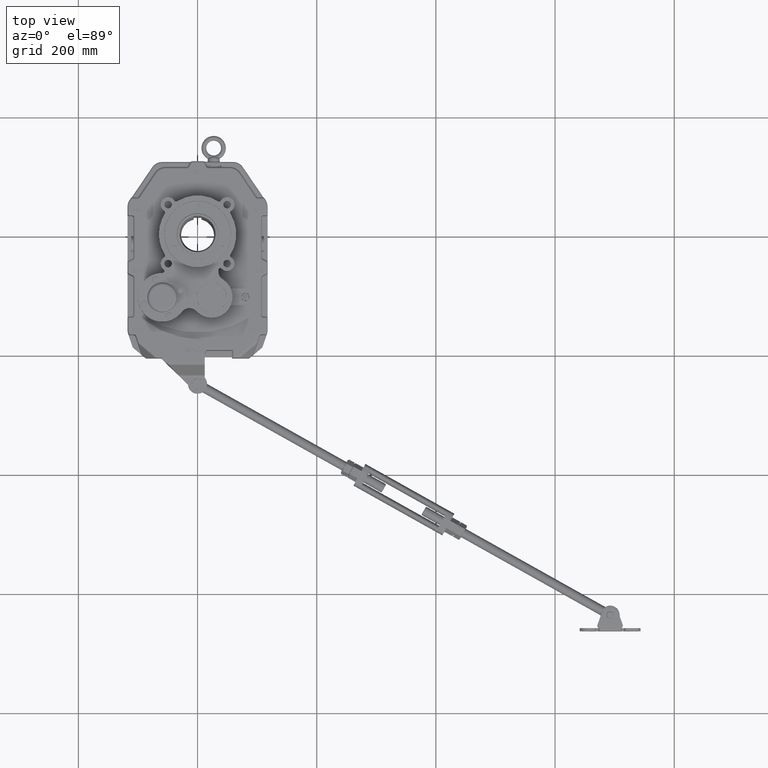
[diagram: clean part render]
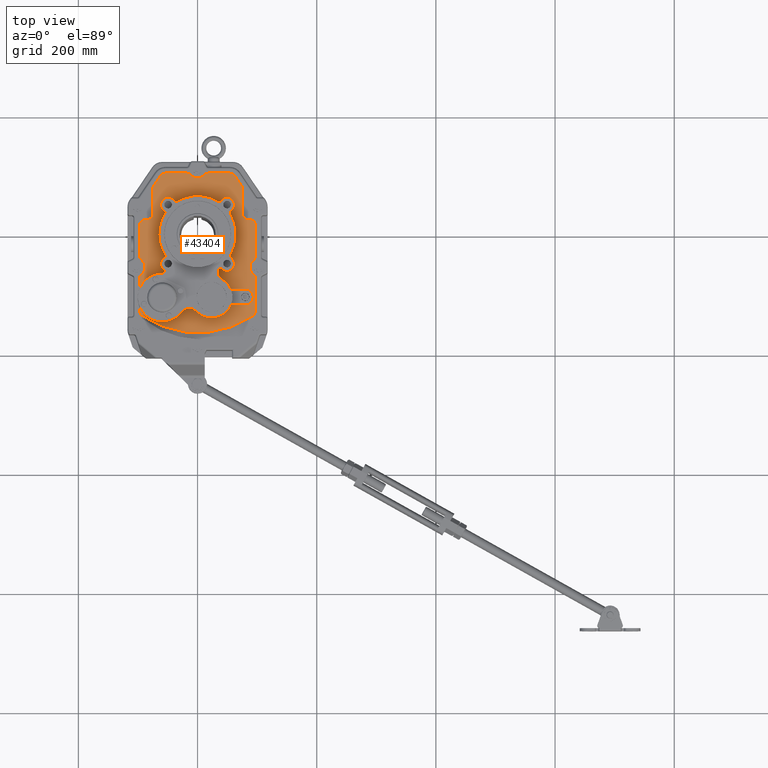
[diagram: same view with one face highlighted and labeled with its STEP entity id]
A machine part, top view. The second image highlights one B-rep face of the part: STEP entity #43404.
In plain terms, the highlighted planar face has unit normal (0, 0, 1).
Its self-contained STEP definition (entity closure, byte-faithful):
#63 = CARTESIAN_POINT ( 'NONE',  ( 2.165242691220416100, -1.363996768926805500, 3.425196850393701400 ) ) ;
#102 = ORIENTED_EDGE ( 'NONE', *, *, #18025, .F. ) ;
#127 = DIRECTION ( 'NONE',  ( -1.000000000000000000, 0.0000000000000000000, 0.0000000000000000000 ) ) ;
#179 = VERTEX_POINT ( 'NONE', #36870 ) ;
#317 = AXIS2_PLACEMENT_3D ( 'NONE', #37552, #11380, #41975 ) ;
#418 = EDGE_CURVE ( 'NONE', #13472, #18534, #47216, .T. ) ;
#689 = CARTESIAN_POINT ( 'NONE',  ( -2.131126906423645100, 3.661417322834645800, 3.425196850393701400 ) ) ;
#842 = CARTESIAN_POINT ( 'NONE',  ( -3.838582677165355100, -4.596103358185295000E-016, 3.425196850393701400 ) ) ;
#966 = CIRCLE ( 'NONE', #29306, 0.3937007874015746000 ) ;
#1049 = CARTESIAN_POINT ( 'NONE',  ( 3.688976377952756900, -1.702006805214179900, 3.425196850393701400 ) ) ;
#1146 = ORIENTED_EDGE ( 'NONE', *, *, #21333, .T. ) ;
#1168 = ORIENTED_EDGE ( 'NONE', *, *, #31981, .F. ) ;
#1314 = CARTESIAN_POINT ( 'NONE',  ( 2.559055118110236600, 3.030408433684737900, 3.425196850393701400 ) ) ;
#1393 = CARTESIAN_POINT ( 'NONE',  ( -2.337795275590550700, -4.173228346456692600, 3.425196850393701400 ) ) ;
#1419 = AXIS2_PLACEMENT_3D ( 'NONE', #47978, #21734, #52424 ) ;
#1520 = ORIENTED_EDGE ( 'NONE', *, *, #41373, .T. ) ;
#1769 = CARTESIAN_POINT ( 'NONE',  ( -2.165242691220417000, 1.363996768926805100, 3.425196850393701400 ) ) ;
#1793 = VERTEX_POINT ( 'NONE', #17258 ) ;
#1806 = DIRECTION ( 'NONE',  ( 1.000000000000000000, 0.0000000000000000000, 0.0000000000000000000 ) ) ;
#1835 = ORIENTED_EDGE ( 'NONE', *, *, #41409, .F. ) ;
#1883 = CARTESIAN_POINT ( 'NONE',  ( -1.948719475710958300, 1.948719475710957400, 3.425196850393701400 ) ) ;
#1987 = CARTESIAN_POINT ( 'NONE',  ( 0.9299212598425203900, -4.149055118110236000, 3.425196850393701400 ) ) ;
#2024 = DIRECTION ( 'NONE',  ( 1.000000000000000000, 0.0000000000000000000, 0.0000000000000000000 ) ) ;
#2143 = CARTESIAN_POINT ( 'NONE',  ( -0.5922498248009313600, -4.639412485231416000, 3.425196850393700500 ) ) ;
#2157 = AXIS2_PLACEMENT_3D ( 'NONE', #54207, #27906, #1806 ) ;
#2278 = ORIENTED_EDGE ( 'NONE', *, *, #28832, .T. ) ;
#2366 = DIRECTION ( 'NONE',  ( 1.000000000000000000, 0.0000000000000000000, 0.0000000000000000000 ) ) ;
#2394 = DIRECTION ( 'NONE',  ( 1.000000000000000000, 0.0000000000000000000, 0.0000000000000000000 ) ) ;
#2546 = ORIENTED_EDGE ( 'NONE', *, *, #32982, .F. ) ;
#2551 = CARTESIAN_POINT ( 'NONE',  ( -3.444881889763780500, 0.5905511811023623800, 3.425196850393701400 ) ) ;
#2585 = CARTESIAN_POINT ( 'NONE',  ( 2.165242691220416100, 1.363996768926805100, 3.425196850393701400 ) ) ;
#2634 = AXIS2_PLACEMENT_3D ( 'NONE', #46844, #20621, #51282 ) ;
#2731 = DIRECTION ( 'NONE',  ( 1.000000000000000000, -1.110223024625156100E-015, 0.0000000000000000000 ) ) ;
#2842 = EDGE_CURVE ( 'NONE', #44930, #46977, #10909, .T. ) ;
#2974 = CARTESIAN_POINT ( 'NONE',  ( -3.838582677165354600, -4.767528259282508800, 3.425196850393701400 ) ) ;
#3171 = ORIENTED_EDGE ( 'NONE', *, *, #47142, .T. ) ;
#3172 = AXIS2_PLACEMENT_3D ( 'NONE', #55112, #28834, #2731 ) ;
#3254 = CARTESIAN_POINT ( 'NONE',  ( 3.838582677165355100, -1.393108454884525600, 3.425196850393701400 ) ) ;
#3273 = CARTESIAN_POINT ( 'NONE',  ( 1.948719475710957800, -1.948719475710958300, 3.425196850393701400 ) ) ;
#3293 = DIRECTION ( 'NONE',  ( -0.7547095802227760100, 0.6560590289905026100, -0.0000000000000000000 ) ) ;
#3295 = EDGE_CURVE ( 'NONE', #15310, #23359, #10145, .T. ) ;
#3450 = VERTEX_POINT ( 'NONE', #34448 ) ;
#3531 = CIRCLE ( 'NONE', #7735, 0.1181102362204725500 ) ;
#3615 = CARTESIAN_POINT ( 'NONE',  ( 2.265176969276743200, -1.426950465954196700, 3.425196850393701400 ) ) ;
#3668 = DIRECTION ( 'NONE',  ( 1.000000000000000000, 0.0000000000000000000, 0.0000000000000000000 ) ) ;
#3940 = AXIS2_PLACEMENT_3D ( 'NONE', #49687, #23390, #54111 ) ;
#5075 = CARTESIAN_POINT ( 'NONE',  ( -2.203927131812397600, -1.527938016229698700, 3.425196850393701400 ) ) ;
#5095 = DIRECTION ( 'NONE',  ( 1.000000000000000000, 0.0000000000000000000, 0.0000000000000000000 ) ) ;
#5137 = EDGE_CURVE ( 'NONE', #8552, #11433, #42046, .T. ) ;
#5192 = ORIENTED_EDGE ( 'NONE', *, *, #56242, .T. ) ;
#5245 = DIRECTION ( 'NONE',  ( 1.197343849209297100E-016, -1.000000000000000000, 0.0000000000000000000 ) ) ;
#5274 = CARTESIAN_POINT ( 'NONE',  ( 2.952755905511811100, 3.030408433684737900, 3.425196850393701400 ) ) ;
#5400 = CARTESIAN_POINT ( 'NONE',  ( 2.884894484019640000, 3.251381322574705000, 3.425196850393701400 ) ) ;
#5496 = CARTESIAN_POINT ( 'NONE',  ( 2.265176969276743600, 1.426950465954196300, 3.425196850393701400 ) ) ;
#5509 = CIRCLE ( 'NONE', #317, 0.5905511811023621500 ) ;
#5728 = DIRECTION ( 'NONE',  ( 1.000000000000000000, 0.0000000000000000000, 0.0000000000000000000 ) ) ;
#5792 = ORIENTED_EDGE ( 'NONE', *, *, #16773, .T. ) ;
#5808 = DIRECTION ( 'NONE',  ( 1.000000000000000000, 0.0000000000000000000, 0.0000000000000000000 ) ) ;
#5841 = VECTOR ( 'NONE', #12020, 39.37007874015748100 ) ;
#5949 = CIRCLE ( 'NONE', #19920, 2.559055118110236600 ) ;
#6019 = VERTEX_POINT ( 'NONE', #39363 ) ;
#6034 = ORIENTED_EDGE ( 'NONE', *, *, #418, .T. ) ;
#6083 = VERTEX_POINT ( 'NONE', #39943 ) ;
#6140 = DIRECTION ( 'NONE',  ( -0.0000000000000000000, 0.0000000000000000000, 1.000000000000000000 ) ) ;
#6158 = CARTESIAN_POINT ( 'NONE',  ( -3.838582677165354600, -5.037024244851963300, 3.425196850393701400 ) ) ;
#6308 = DIRECTION ( 'NONE',  ( -0.0000000000000000000, 0.0000000000000000000, 1.000000000000000000 ) ) ;
#6324 = DIRECTION ( 'NONE',  ( 1.000000000000000000, 0.0000000000000000000, 0.0000000000000000000 ) ) ;
#6330 = CARTESIAN_POINT ( 'NONE',  ( 0.9299212598425203900, -4.149055118110236000, 3.425196850393701400 ) ) ;
#6367 = CARTESIAN_POINT ( 'NONE',  ( -3.486430754615614800, 2.364375690494199000, 3.425196850393701400 ) ) ;
#6434 = DIRECTION ( 'NONE',  ( 1.000000000000000000, 0.0000000000000000000, 0.0000000000000000000 ) ) ;
#6532 = EDGE_CURVE ( 'NONE', #50035, #33861, #45415, .T. ) ;
#6540 = CIRCLE ( 'NONE', #43175, 0.3937007874015748300 ) ;
#6784 = EDGE_CURVE ( 'NONE', #33122, #20916, #55015, .T. ) ;
#6790 = VERTEX_POINT ( 'NONE', #31355 ) ;
#6841 = CIRCLE ( 'NONE', #42261, 0.5905511811023621500 ) ;
#6859 = AXIS2_PLACEMENT_3D ( 'NONE', #32203, #6140, #36678 ) ;
#6886 = EDGE_CURVE ( 'NONE', #55113, #23441, #45365, .T. ) ;
#6945 = AXIS2_PLACEMENT_3D ( 'NONE', #50287, #24016, #54729 ) ;
#6962 = DIRECTION ( 'NONE',  ( 1.000000000000000000, 0.0000000000000000000, 0.0000000000000000000 ) ) ;
#6964 = CARTESIAN_POINT ( 'NONE',  ( -0.9846883557387301500, -5.080709094029603400, 3.425196850393700500 ) ) ;
#7205 = DIRECTION ( 'NONE',  ( 0.0000000000000000000, -0.0000000000000000000, -1.000000000000000000 ) ) ;
#7220 = CARTESIAN_POINT ( 'NONE',  ( -2.337795275590550700, -4.173228346456692600, 3.425196850393701400 ) ) ;
#7245 = EDGE_CURVE ( 'NONE', #55652, #11433, #966, .T. ) ;
#7282 = VERTEX_POINT ( 'NONE', #52254 ) ;
#7318 = CARTESIAN_POINT ( 'NONE',  ( 0.0000000000000000000, 0.0000000000000000000, 3.425196850393701400 ) ) ;
#7436 = EDGE_CURVE ( 'NONE', #28521, #8120, #11902, .T. ) ;
#7443 = CARTESIAN_POINT ( 'NONE',  ( 2.203927131812397600, 1.527938016229698300, 3.425196850393701400 ) ) ;
#7524 = CARTESIAN_POINT ( 'NONE',  ( -2.952755905511812400, 3.030408433684734800, 3.425196850393701400 ) ) ;
#7566 = CARTESIAN_POINT ( 'NONE',  ( 3.838582677165355100, -3.369200623907272300E-016, 3.425196850393701400 ) ) ;
#7639 = CARTESIAN_POINT ( 'NONE',  ( 3.838582677165355100, -3.369200623907272300E-016, 3.425196850393701400 ) ) ;
#7671 = LINE ( 'NONE', #27619, #19195 ) ;
#7679 = DIRECTION ( 'NONE',  ( 1.000000000000000000, 0.0000000000000000000, 0.0000000000000000000 ) ) ;
#7689 = AXIS2_PLACEMENT_3D ( 'NONE', #52528, #26214, #127 ) ;
#7697 = AXIS2_PLACEMENT_3D ( 'NONE', #48117, #21856, #52559 ) ;
#7735 = AXIS2_PLACEMENT_3D ( 'NONE', #5496, #36039, #9884 ) ;
#7738 = VERTEX_POINT ( 'NONE', #34385 ) ;
#7797 = AXIS2_PLACEMENT_3D ( 'NONE', #44545, #18297, #48926 ) ;
#7816 = ORIENTED_EDGE ( 'NONE', *, *, #6532, .F. ) ;
#8002 = DIRECTION ( 'NONE',  ( 1.000000000000000000, 0.0000000000000000000, 0.0000000000000000000 ) ) ;
#8061 = CARTESIAN_POINT ( 'NONE',  ( 2.952755905511811600, 7.444619571526831900E-016, 3.425196850393701400 ) ) ;
#8120 = VERTEX_POINT ( 'NONE', #33529 ) ;
#8313 = CARTESIAN_POINT ( 'NONE',  ( 0.0000000000000000000, 0.0000000000000000000, 3.425196850393701400 ) ) ;
#8323 = EDGE_CURVE ( 'NONE', #44316, #15310, #19226, .T. ) ;
#8357 = CARTESIAN_POINT ( 'NONE',  ( 2.194785148156718400, -3.602362204724408800, 3.425196850393701400 ) ) ;
#8412 = ORIENTED_EDGE ( 'NONE', *, *, #13417, .F. ) ;
#8508 = VECTOR ( 'NONE', #5245, 39.37007874015748100 ) ;
#8552 = VERTEX_POINT ( 'NONE', #27525 ) ;
#8565 = DIRECTION ( 'NONE',  ( 0.0000000000000000000, -0.0000000000000000000, -1.000000000000000000 ) ) ;
#8654 = CARTESIAN_POINT ( 'NONE',  ( -3.444881889763780100, -5.037024244851963300, 3.425196850393701400 ) ) ;
#8799 = VECTOR ( 'NONE', #28490, 39.37007874015748100 ) ;
#9424 = VECTOR ( 'NONE', #16200, 39.37007874015748100 ) ;
#9557 = EDGE_CURVE ( 'NONE', #50578, #32836, #44320, .T. ) ;
#9775 = VERTEX_POINT ( 'NONE', #33400 ) ;
#9786 = CARTESIAN_POINT ( 'NONE',  ( -1.131584544875512000, -5.245893664353340000, 3.425196850393700500 ) ) ;
#9798 = CARTESIAN_POINT ( 'NONE',  ( 2.952755905511811100, 1.377952755905512200, 3.425196850393701400 ) ) ;
#9884 = DIRECTION ( 'NONE',  ( 1.000000000000000000, -2.312964634635740700E-015, 0.0000000000000000000 ) ) ;
#10030 = EDGE_CURVE ( 'NONE', #3450, #54992, #5949, .T. ) ;
#10145 = LINE ( 'NONE', #19712, #8799 ) ;
#10192 = DIRECTION ( 'NONE',  ( 0.0000000000000000000, -0.0000000000000000000, -1.000000000000000000 ) ) ;
#10308 = EDGE_CURVE ( 'NONE', #44930, #7738, #39397, .T. ) ;
#10391 = CARTESIAN_POINT ( 'NONE',  ( -1.948719475710957800, -1.948719475710958300, 3.425196850393701400 ) ) ;
#10689 = DIRECTION ( 'NONE',  ( 1.000000000000000000, 0.0000000000000000000, 0.0000000000000000000 ) ) ;
#10747 = VERTEX_POINT ( 'NONE', #40714 ) ;
#10788 = EDGE_CURVE ( 'NONE', #46977, #50544, #31058, .T. ) ;
#10790 = EDGE_CURVE ( 'NONE', #10747, #6790, #19413, .T. ) ;
#10909 = CIRCLE ( 'NONE', #41940, 0.1181102362204725500 ) ;
#10977 = ORIENTED_EDGE ( 'NONE', *, *, #12970, .T. ) ;
#11006 = ORIENTED_EDGE ( 'NONE', *, *, #45570, .T. ) ;
#11132 = CIRCLE ( 'NONE', #45392, 0.4921259842519684100 ) ;
#11178 = CIRCLE ( 'NONE', #55027, 0.3937007874015746000 ) ;
#11261 = LINE ( 'NONE', #44040, #12648 ) ;
#11360 = CARTESIAN_POINT ( 'NONE',  ( -2.884894484019641300, 3.251381322574701500, 3.425196850393701400 ) ) ;
#11380 = DIRECTION ( 'NONE',  ( 0.0000000000000000000, 0.0000000000000000000, 1.000000000000000000 ) ) ;
#11433 = VERTEX_POINT ( 'NONE', #24484 ) ;
#11481 = AXIS2_PLACEMENT_3D ( 'NONE', #1987, #32497, #6434 ) ;
#11614 = DIRECTION ( 'NONE',  ( 1.000000000000000000, 0.0000000000000000000, 0.0000000000000000000 ) ) ;
#11641 = CIRCLE ( 'NONE', #2634, 0.3937007874015746000 ) ;
#11703 = DIRECTION ( 'NONE',  ( 1.000000000000000000, 0.0000000000000000000, 0.0000000000000000000 ) ) ;
#11752 = EDGE_CURVE ( 'NONE', #50419, #30520, #41879, .T. ) ;
#11856 = VERTEX_POINT ( 'NONE', #53968 ) ;
#11902 = CIRCLE ( 'NONE', #7797, 0.1181102362204725500 ) ;
#12002 = CARTESIAN_POINT ( 'NONE',  ( -2.265176969276743600, 1.426950465954196100, 3.425196850393701400 ) ) ;
#12020 = DIRECTION ( 'NONE',  ( -8.777199574076379000E-017, -1.000000000000000000, 0.0000000000000000000 ) ) ;
#12364 = DIRECTION ( 'NONE',  ( -0.0000000000000000000, 0.0000000000000000000, 1.000000000000000000 ) ) ;
#12381 = VERTEX_POINT ( 'NONE', #50037 ) ;
#12539 = CIRCLE ( 'NONE', #48895, 0.4921259842519692400 ) ;
#12612 = CARTESIAN_POINT ( 'NONE',  ( -3.464566929133857000, -2.165354330708661600, 3.425196850393701400 ) ) ;
#12648 = VECTOR ( 'NONE', #17795, 39.37007874015748100 ) ;
#12670 = ORIENTED_EDGE ( 'NONE', *, *, #49872, .F. ) ;
#12716 = DIRECTION ( 'NONE',  ( 1.000000000000000000, 0.0000000000000000000, 0.0000000000000000000 ) ) ;
#12752 = LINE ( 'NONE', #8061, #14068 ) ;
#12951 = ORIENTED_EDGE ( 'NONE', *, *, #17576, .F. ) ;
#12970 = EDGE_CURVE ( 'NONE', #13950, #6019, #25226, .T. ) ;
#13042 = DIRECTION ( 'NONE',  ( 1.000000000000000000, 0.0000000000000000000, 0.0000000000000000000 ) ) ;
#13100 = VERTEX_POINT ( 'NONE', #42780 ) ;
#13165 = ORIENTED_EDGE ( 'NONE', *, *, #10030, .F. ) ;
#13226 = ORIENTED_EDGE ( 'NONE', *, *, #7245, .T. ) ;
#13333 = EDGE_CURVE ( 'NONE', #49836, #44316, #54689, .T. ) ;
#13417 = EDGE_CURVE ( 'NONE', #13950, #25921, #37536, .T. ) ;
#13472 = VERTEX_POINT ( 'NONE', #41149 ) ;
#13950 = VERTEX_POINT ( 'NONE', #31638 ) ;
#14068 = VECTOR ( 'NONE', #43054, 39.37007874015748100 ) ;
#14086 = ORIENTED_EDGE ( 'NONE', *, *, #35494, .T. ) ;
#14103 = DIRECTION ( 'NONE',  ( -0.0000000000000000000, 0.0000000000000000000, 1.000000000000000000 ) ) ;
#14161 = ORIENTED_EDGE ( 'NONE', *, *, #7436, .F. ) ;
#14435 = LINE ( 'NONE', #6367, #47970 ) ;
#14620 = CARTESIAN_POINT ( 'NONE',  ( 0.0000000000000000000, 4.055118110236220400, 3.425196850393701400 ) ) ;
#14633 = EDGE_CURVE ( 'NONE', #16931, #23987, #35935, .T. ) ;
#14694 = ORIENTED_EDGE ( 'NONE', *, *, #10790, .F. ) ;
#14753 = DIRECTION ( 'NONE',  ( 1.000000000000000000, 1.110223024625156700E-015, 0.0000000000000000000 ) ) ;
#15159 = VERTEX_POINT ( 'NONE', #5274 ) ;
#15233 = EDGE_CURVE ( 'NONE', #21774, #26097, #21210, .T. ) ;
#15295 = DIRECTION ( 'NONE',  ( -0.7472622575649244800, 0.6645292457213394200, -0.0000000000000000000 ) ) ;
#15310 = VERTEX_POINT ( 'NONE', #15334 ) ;
#15319 = AXIS2_PLACEMENT_3D ( 'NONE', #36353, #10192, #40762 ) ;
#15334 = CARTESIAN_POINT ( 'NONE',  ( -3.346456692913386100, 0.9842519685039372600, 3.425196850393701400 ) ) ;
#15336 = ORIENTED_EDGE ( 'NONE', *, *, #42262, .T. ) ;
#15341 = VERTEX_POINT ( 'NONE', #11360 ) ;
#15343 = AXIS2_PLACEMENT_3D ( 'NONE', #49587, #23284, #54008 ) ;
#15665 = AXIS2_PLACEMENT_3D ( 'NONE', #32364, #6308, #36837 ) ;
#15686 = VERTEX_POINT ( 'NONE', #53024 ) ;
#15770 = ORIENTED_EDGE ( 'NONE', *, *, #5137, .F. ) ;
#16064 = CARTESIAN_POINT ( 'NONE',  ( -2.271583171080300300, -2.320131670702482400, 3.425196850393700500 ) ) ;
#16161 = CARTESIAN_POINT ( 'NONE',  ( 3.444881889763780500, 0.5905511811023624900, 3.425196850393701400 ) ) ;
#16191 = CARTESIAN_POINT ( 'NONE',  ( 2.207492753175805500, -4.665354330708662000, 3.425196850393701400 ) ) ;
#16200 = DIRECTION ( 'NONE',  ( 1.197343849209297100E-016, -1.000000000000000000, 0.0000000000000000000 ) ) ;
#16202 = EDGE_LOOP ( 'NONE', ( #29538, #6034, #19598, #2278, #39658, #5792, #2546, #37357, #23108, #35687, #55796, #30927, #49251, #1520, #34667, #1835, #15336, #36170, #24112, #46963, #44179, #53313, #51154, #52358, #13165, #21143, #41840, #19549, #43538, #37920, #14694, #41261, #28426, #18761, #23718, #55377, #27822, #44001, #40995, #11006, #14161, #5192, #47375, #12670, #23317, #7816, #1168, #51689, #34856, #14086, #49890, #29153, #13226, #15770, #29474, #102, #44928, #32303, #3171, #35167, #36568, #18366, #35261, #12951, #1146, #8412, #10977 ) ) ;
#16361 = DIRECTION ( 'NONE',  ( 1.000000000000000000, -4.625929269271481400E-015, 0.0000000000000000000 ) ) ;
#16748 = VERTEX_POINT ( 'NONE', #26599 ) ;
#16773 = EDGE_CURVE ( 'NONE', #50419, #49879, #44319, .T. ) ;
#16931 = VERTEX_POINT ( 'NONE', #27535 ) ;
#17258 = CARTESIAN_POINT ( 'NONE',  ( 2.440845459962926800, 1.948719475710957800, 3.425196850393701400 ) ) ;
#17523 = AXIS2_PLACEMENT_3D ( 'NONE', #38536, #12364, #42990 ) ;
#17576 = EDGE_CURVE ( 'NONE', #15159, #23987, #12752, .T. ) ;
#17660 = DIRECTION ( 'NONE',  ( 0.0000000000000000000, -0.0000000000000000000, -1.000000000000000000 ) ) ;
#17795 = DIRECTION ( 'NONE',  ( 1.000000000000000000, 0.0000000000000000000, 0.0000000000000000000 ) ) ;
#18025 = EDGE_CURVE ( 'NONE', #12381, #6083, #40694, .T. ) ;
#18297 = DIRECTION ( 'NONE',  ( 0.0000000000000000000, -0.0000000000000000000, -1.000000000000000000 ) ) ;
#18321 = CIRCLE ( 'NONE', #15343, 0.1181102362204725500 ) ;
#18366 = ORIENTED_EDGE ( 'NONE', *, *, #18835, .F. ) ;
#18448 = VERTEX_POINT ( 'NONE', #41589 ) ;
#18458 = DIRECTION ( 'NONE',  ( 0.0000000000000000000, -0.0000000000000000000, -1.000000000000000000 ) ) ;
#18534 = VERTEX_POINT ( 'NONE', #24670 ) ;
#18685 = CARTESIAN_POINT ( 'NONE',  ( 3.444881889763780500, -1.393108454884525600, 3.425196850393701400 ) ) ;
#18689 = AXIS2_PLACEMENT_3D ( 'NONE', #6330, #36855, #10689 ) ;
#18721 = CARTESIAN_POINT ( 'NONE',  ( 3.486430754615615200, 2.364375690494199000, 3.425196850393701400 ) ) ;
#18761 = ORIENTED_EDGE ( 'NONE', *, *, #27364, .T. ) ;
#18835 = EDGE_CURVE ( 'NONE', #16931, #51347, #11261, .T. ) ;
#19077 = AXIS2_PLACEMENT_3D ( 'NONE', #34693, #8565, #39121 ) ;
#19126 = EDGE_CURVE ( 'NONE', #16748, #55113, #46419, .T. ) ;
#19195 = VECTOR ( 'NONE', #53920, 39.37007874015748100 ) ;
#19211 = EDGE_CURVE ( 'NONE', #29565, #18534, #38206, .T. ) ;
#19226 = CIRCLE ( 'NONE', #19077, 0.3937007874015746000 ) ;
#19327 = VERTEX_POINT ( 'NONE', #35529 ) ;
#19341 = CARTESIAN_POINT ( 'NONE',  ( -1.131584544875511100, -5.245893664353339100, 3.425196850393700500 ) ) ;
#19365 = EDGE_CURVE ( 'NONE', #54992, #23441, #19665, .T. ) ;
#19413 = CIRCLE ( 'NONE', #6859, 2.559055118110236600 ) ;
#19500 = CARTESIAN_POINT ( 'NONE',  ( 2.203927131812397200, -1.527938016229699600, 3.425196850393701400 ) ) ;
#19530 = DIRECTION ( 'NONE',  ( 0.0000000000000000000, -0.0000000000000000000, -1.000000000000000000 ) ) ;
#19549 = ORIENTED_EDGE ( 'NONE', *, *, #25046, .F. ) ;
#19598 = ORIENTED_EDGE ( 'NONE', *, *, #19211, .F. ) ;
#19665 = CIRCLE ( 'NONE', #48299, 0.1181102362204725500 ) ;
#19676 = VERTEX_POINT ( 'NONE', #7443 ) ;
#19712 = CARTESIAN_POINT ( 'NONE',  ( -1.517693329813480600E-016, 0.9842519685039378100, 3.425196850393701400 ) ) ;
#19797 = DIRECTION ( 'NONE',  ( -0.0000000000000000000, 0.0000000000000000000, 1.000000000000000000 ) ) ;
#19842 = AXIS2_PLACEMENT_3D ( 'NONE', #7318, #37877, #11703 ) ;
#19920 = AXIS2_PLACEMENT_3D ( 'NONE', #8313, #38875, #12716 ) ;
#20513 = DIRECTION ( 'NONE',  ( 1.000000000000000000, 0.0000000000000000000, 0.0000000000000000000 ) ) ;
#20555 = CARTESIAN_POINT ( 'NONE',  ( -3.838582677165355100, -4.596103358185295000E-016, 3.425196850393701400 ) ) ;
#20621 = DIRECTION ( 'NONE',  ( -0.0000000000000000000, 0.0000000000000000000, 1.000000000000000000 ) ) ;
#20916 = VERTEX_POINT ( 'NONE', #23404 ) ;
#20935 = AXIS2_PLACEMENT_3D ( 'NONE', #54766, #28460, #2366 ) ;
#20982 = PLANE ( 'NONE',  #56105 ) ;
#21056 = CARTESIAN_POINT ( 'NONE',  ( 3.149606299212599000, -3.602362204724409300, 3.425196850393701400 ) ) ;
#21093 = VERTEX_POINT ( 'NONE', #3254 ) ;
#21143 = ORIENTED_EDGE ( 'NONE', *, *, #38284, .F. ) ;
#21210 = CIRCLE ( 'NONE', #11481, 1.377952755905512000 ) ;
#21253 = DIRECTION ( 'NONE',  ( 0.0000000000000000000, 0.0000000000000000000, 1.000000000000000000 ) ) ;
#21330 = VERTEX_POINT ( 'NONE', #40484 ) ;
#21333 = EDGE_CURVE ( 'NONE', #15159, #25921, #11178, .T. ) ;
#21349 = DIRECTION ( 'NONE',  ( 0.0000000000000000000, -0.0000000000000000000, -1.000000000000000000 ) ) ;
#21734 = DIRECTION ( 'NONE',  ( 0.0000000000000000000, 0.0000000000000000000, 1.000000000000000000 ) ) ;
#21752 = VECTOR ( 'NONE', #29452, 39.37007874015748100 ) ;
#21774 = VERTEX_POINT ( 'NONE', #8357 ) ;
#21856 = DIRECTION ( 'NONE',  ( -0.0000000000000000000, 0.0000000000000000000, 1.000000000000000000 ) ) ;
#22066 = AXIS2_PLACEMENT_3D ( 'NONE', #46024, #19797, #50434 ) ;
#22372 = CARTESIAN_POINT ( 'NONE',  ( -2.203927131812397600, 1.527938016229698900, 3.425196850393701400 ) ) ;
#22629 = DIRECTION ( 'NONE',  ( -0.0000000000000000000, 0.0000000000000000000, 1.000000000000000000 ) ) ;
#22820 = VECTOR ( 'NONE', #15295, 39.37007874015748900 ) ;
#22867 = EDGE_CURVE ( 'NONE', #23729, #11856, #38994, .T. ) ;
#22921 = VECTOR ( 'NONE', #27747, 39.37007874015748100 ) ;
#23050 = DIRECTION ( 'NONE',  ( 1.000000000000000000, 0.0000000000000000000, 0.0000000000000000000 ) ) ;
#23076 = VECTOR ( 'NONE', #3293, 39.37007874015748900 ) ;
#23082 = LINE ( 'NONE', #7566, #21752 ) ;
#23108 = ORIENTED_EDGE ( 'NONE', *, *, #13333, .T. ) ;
#23117 = CARTESIAN_POINT ( 'NONE',  ( -2.952755905511811600, 1.377952755905512200, 3.425196850393701400 ) ) ;
#23284 = DIRECTION ( 'NONE',  ( 0.0000000000000000000, -0.0000000000000000000, -1.000000000000000000 ) ) ;
#23317 = ORIENTED_EDGE ( 'NONE', *, *, #56592, .F. ) ;
#23359 = VERTEX_POINT ( 'NONE', #35055 ) ;
#23390 = DIRECTION ( 'NONE',  ( -0.0000000000000000000, 0.0000000000000000000, 1.000000000000000000 ) ) ;
#23404 = CARTESIAN_POINT ( 'NONE',  ( -3.838582677165355100, -1.393108454884524900, 3.425196850393701400 ) ) ;
#23441 = VERTEX_POINT ( 'NONE', #5075 ) ;
#23718 = ORIENTED_EDGE ( 'NONE', *, *, #48174, .F. ) ;
#23729 = VERTEX_POINT ( 'NONE', #6964 ) ;
#23987 = VERTEX_POINT ( 'NONE', #9798 ) ;
#24016 = DIRECTION ( 'NONE',  ( 0.0000000000000000000, -0.0000000000000000000, -1.000000000000000000 ) ) ;
#24093 = CARTESIAN_POINT ( 'NONE',  ( -4.055118110236219500, -2.165354330708661600, 3.425196850393701400 ) ) ;
#24112 = ORIENTED_EDGE ( 'NONE', *, *, #33747, .F. ) ;
#24484 = CARTESIAN_POINT ( 'NONE',  ( -3.667132334264668900, -5.361993550971445400, 3.425196850393701400 ) ) ;
#24512 = CARTESIAN_POINT ( 'NONE',  ( -3.688976377952756000, -1.702006805214179500, 3.425196850393701400 ) ) ;
#24562 = CARTESIAN_POINT ( 'NONE',  ( 0.01423135432098975500, -5.178747205305998400, 3.425196850393700500 ) ) ;
#24670 = CARTESIAN_POINT ( 'NONE',  ( 0.4329992782635440100, 3.929133858267716700, 3.425196850393701400 ) ) ;
#25046 = EDGE_CURVE ( 'NONE', #54871, #15686, #29834, .T. ) ;
#25156 = CARTESIAN_POINT ( 'NONE',  ( -0.7216654637725732300, 4.055118110236220400, 3.425196850393701400 ) ) ;
#25226 = CIRCLE ( 'NONE', #39610, 0.3937007874015746000 ) ;
#25452 = CIRCLE ( 'NONE', #41111, 0.1181102362204725500 ) ;
#25552 = AXIS2_PLACEMENT_3D ( 'NONE', #40316, #14103, #44708 ) ;
#25921 = VERTEX_POINT ( 'NONE', #5400 ) ;
#25967 = CARTESIAN_POINT ( 'NONE',  ( 1.948719475710957800, 1.948719475710957800, 3.425196850393701400 ) ) ;
#26097 = VERTEX_POINT ( 'NONE', #28792 ) ;
#26214 = DIRECTION ( 'NONE',  ( 0.0000000000000000000, 0.0000000000000000000, 1.000000000000000000 ) ) ;
#26470 = CIRCLE ( 'NONE', #17523, 0.3937007874015746000 ) ;
#26599 = CARTESIAN_POINT ( 'NONE',  ( -2.235146074997497400, -2.351805955091798200, 3.425196850393700500 ) ) ;
#26769 = EDGE_CURVE ( 'NONE', #34035, #51347, #50908, .T. ) ;
#26774 = AXIS2_PLACEMENT_3D ( 'NONE', #33294, #7205, #37759 ) ;
#27059 = CIRCLE ( 'NONE', #22066, 0.3937007874015748800 ) ;
#27278 = VERTEX_POINT ( 'NONE', #21056 ) ;
#27364 = EDGE_CURVE ( 'NONE', #1793, #19676, #12539, .T. ) ;
#27525 = CARTESIAN_POINT ( 'NONE',  ( 3.667132334264669300, -5.361993550971445400, 3.425196850393701400 ) ) ;
#27535 = CARTESIAN_POINT ( 'NONE',  ( 3.346456692913385700, 0.9842519685039373700, 3.425196850393701400 ) ) ;
#27619 = CARTESIAN_POINT ( 'NONE',  ( 2.194785148156718400, -3.602362204724408800, 3.425196850393701400 ) ) ;
#27659 = AXIS2_PLACEMENT_3D ( 'NONE', #18685, #49315, #23050 ) ;
#27747 = DIRECTION ( 'NONE',  ( 1.000000000000000000, 1.601965197857698900E-015, 0.0000000000000000000 ) ) ;
#27822 = ORIENTED_EDGE ( 'NONE', *, *, #10788, .F. ) ;
#27894 = CIRCLE ( 'NONE', #6945, 0.4921259842519692400 ) ;
#27906 = DIRECTION ( 'NONE',  ( 0.0000000000000000000, -0.0000000000000000000, -1.000000000000000000 ) ) ;
#27922 = CIRCLE ( 'NONE', #37192, 1.614173228346456700 ) ;
#27929 = CARTESIAN_POINT ( 'NONE',  ( -2.131126906423645100, 4.055118110236220400, 3.425196850393701400 ) ) ;
#28129 = DIRECTION ( 'NONE',  ( -0.0000000000000000000, 0.0000000000000000000, 1.000000000000000000 ) ) ;
#28426 = ORIENTED_EDGE ( 'NONE', *, *, #41982, .T. ) ;
#28460 = DIRECTION ( 'NONE',  ( 0.0000000000000000000, -0.0000000000000000000, -1.000000000000000000 ) ) ;
#28490 = DIRECTION ( 'NONE',  ( -1.000000000000000000, -1.541976423090494900E-016, 0.0000000000000000000 ) ) ;
#28497 = DIRECTION ( 'NONE',  ( -0.0000000000000000000, 0.0000000000000000000, 1.000000000000000000 ) ) ;
#28498 = DIRECTION ( 'NONE',  ( 1.000000000000000000, 0.0000000000000000000, 0.0000000000000000000 ) ) ;
#28521 = VERTEX_POINT ( 'NONE', #42668 ) ;
#28788 = VECTOR ( 'NONE', #31328, 39.37007874015748100 ) ;
#28792 = CARTESIAN_POINT ( 'NONE',  ( 1.647962577580691200, -2.972972440944881900, 3.425196850393701400 ) ) ;
#28832 = EDGE_CURVE ( 'NONE', #29565, #30520, #6540, .T. ) ;
#28834 = DIRECTION ( 'NONE',  ( 0.0000000000000000000, -0.0000000000000000000, -1.000000000000000000 ) ) ;
#28974 = CIRCLE ( 'NONE', #19842, 2.559055118110236600 ) ;
#28993 = CARTESIAN_POINT ( 'NONE',  ( -3.838582677165355100, 0.5905511811023623800, 3.425196850393701400 ) ) ;
#29153 = ORIENTED_EDGE ( 'NONE', *, *, #45115, .T. ) ;
#29306 = AXIS2_PLACEMENT_3D ( 'NONE', #8654, #39226, #13042 ) ;
#29423 = CARTESIAN_POINT ( 'NONE',  ( -3.838582677165354600, 0.0000000000000000000, 3.425196850393701400 ) ) ;
#29452 = DIRECTION ( 'NONE',  ( -8.777199574076379000E-017, -1.000000000000000000, 0.0000000000000000000 ) ) ;
#29474 = ORIENTED_EDGE ( 'NONE', *, *, #49785, .T. ) ;
#29538 = ORIENTED_EDGE ( 'NONE', *, *, #47564, .F. ) ;
#29565 = VERTEX_POINT ( 'NONE', #41767 ) ;
#29772 = DIRECTION ( 'NONE',  ( -0.0000000000000000000, 0.0000000000000000000, 1.000000000000000000 ) ) ;
#29834 = CIRCLE ( 'NONE', #47312, 0.1181102362204725500 ) ;
#30391 = DIRECTION ( 'NONE',  ( 1.000000000000000000, 0.0000000000000000000, 0.0000000000000000000 ) ) ;
#30520 = VERTEX_POINT ( 'NONE', #25156 ) ;
#30566 = EDGE_CURVE ( 'NONE', #12381, #13100, #51416, .T. ) ;
#30647 = AXIS2_PLACEMENT_3D ( 'NONE', #45753, #19530, #50176 ) ;
#30927 = ORIENTED_EDGE ( 'NONE', *, *, #42737, .T. ) ;
#31011 = EDGE_CURVE ( 'NONE', #50544, #179, #3531, .T. ) ;
#31058 = CIRCLE ( 'NONE', #3940, 2.559055118110236600 ) ;
#31202 = DIRECTION ( 'NONE',  ( -0.0000000000000000000, 0.0000000000000000000, 1.000000000000000000 ) ) ;
#31328 = DIRECTION ( 'NONE',  ( 1.000000000000000000, 0.0000000000000000000, 0.0000000000000000000 ) ) ;
#31329 = VECTOR ( 'NONE', #40034, 39.37007874015748100 ) ;
#31355 = CARTESIAN_POINT ( 'NONE',  ( -1.363996768926805800, 2.165242691220416100, 3.425196850393701400 ) ) ;
#31465 = VERTEX_POINT ( 'NONE', #1769 ) ;
#31579 = AXIS2_PLACEMENT_3D ( 'NONE', #16161, #46757, #20513 ) ;
#31638 = CARTESIAN_POINT ( 'NONE',  ( 2.456966272333049000, 3.882390211724612500, 3.425196850393701400 ) ) ;
#31792 = DIRECTION ( 'NONE',  ( -0.0000000000000000000, 0.0000000000000000000, 1.000000000000000000 ) ) ;
#31877 = DIRECTION ( 'NONE',  ( -0.0000000000000000000, 0.0000000000000000000, 1.000000000000000000 ) ) ;
#31981 = EDGE_CURVE ( 'NONE', #38847, #50035, #35420, .T. ) ;
#32016 = CARTESIAN_POINT ( 'NONE',  ( -2.456966272333048500, 3.882390211724613000, 3.425196850393701400 ) ) ;
#32203 = CARTESIAN_POINT ( 'NONE',  ( 0.0000000000000000000, 0.0000000000000000000, 3.425196850393701400 ) ) ;
#32239 = EDGE_CURVE ( 'NONE', #21330, #10747, #25452, .T. ) ;
#32303 = ORIENTED_EDGE ( 'NONE', *, *, #52211, .F. ) ;
#32364 = CARTESIAN_POINT ( 'NONE',  ( 1.955694570897049900, -2.468937007874016000, 3.425196850393700500 ) ) ;
#32382 = DIRECTION ( 'NONE',  ( 0.0000000000000000000, -0.0000000000000000000, -1.000000000000000000 ) ) ;
#32497 = DIRECTION ( 'NONE',  ( -0.0000000000000000000, 0.0000000000000000000, 1.000000000000000000 ) ) ;
#32836 = VERTEX_POINT ( 'NONE', #9786 ) ;
#32982 = EDGE_CURVE ( 'NONE', #15341, #49879, #14435, .T. ) ;
#33052 = DIRECTION ( 'NONE',  ( -0.0000000000000000000, 0.0000000000000000000, 1.000000000000000000 ) ) ;
#33122 = VERTEX_POINT ( 'NONE', #28993 ) ;
#33294 = CARTESIAN_POINT ( 'NONE',  ( 3.346456692913385700, 1.377952755905512200, 3.425196850393701400 ) ) ;
#33400 = CARTESIAN_POINT ( 'NONE',  ( -2.337795275590551100, -2.559055118110236600, 3.425196850393700500 ) ) ;
#33529 = CARTESIAN_POINT ( 'NONE',  ( 1.583932553879738000, -2.279050349286033200, 3.425196850393701400 ) ) ;
#33747 = EDGE_CURVE ( 'NONE', #9775, #7282, #27922, .T. ) ;
#33765 = VECTOR ( 'NONE', #37970, 39.37007874015748100 ) ;
#33783 = DIRECTION ( 'NONE',  ( 0.0000000000000000000, -0.0000000000000000000, -1.000000000000000000 ) ) ;
#33827 = DIRECTION ( 'NONE',  ( 0.0000000000000000000, -1.000000000000000000, 0.0000000000000000000 ) ) ;
#33861 = VERTEX_POINT ( 'NONE', #51585 ) ;
#34035 = VERTEX_POINT ( 'NONE', #44652 ) ;
#34131 = DIRECTION ( 'NONE',  ( 0.0000000000000000000, -0.0000000000000000000, -1.000000000000000000 ) ) ;
#34220 = AXIS2_PLACEMENT_3D ( 'NONE', #47584, #21349, #52017 ) ;
#34236 = EDGE_CURVE ( 'NONE', #34035, #21093, #23082, .T. ) ;
#34385 = CARTESIAN_POINT ( 'NONE',  ( 2.440845459962926300, -1.948719475710958300, 3.425196850393701400 ) ) ;
#34399 = LINE ( 'NONE', #29423, #46016 ) ;
#34448 = CARTESIAN_POINT ( 'NONE',  ( -2.559055118110236600, 0.0000000000000000000, 3.425196850393701400 ) ) ;
#34508 = LINE ( 'NONE', #2143, #22820 ) ;
#34602 = LINE ( 'NONE', #49618, #22921 ) ;
#34667 = ORIENTED_EDGE ( 'NONE', *, *, #50495, .F. ) ;
#34693 = CARTESIAN_POINT ( 'NONE',  ( -3.346456692913386100, 1.377952755905512000, 3.425196850393701400 ) ) ;
#34856 = ORIENTED_EDGE ( 'NONE', *, *, #22867, .F. ) ;
#35055 = CARTESIAN_POINT ( 'NONE',  ( -3.444881889763780500, 0.9842519685039372600, 3.425196850393701400 ) ) ;
#35167 = ORIENTED_EDGE ( 'NONE', *, *, #34236, .F. ) ;
#35261 = ORIENTED_EDGE ( 'NONE', *, *, #14633, .T. ) ;
#35343 = AXIS2_PLACEMENT_3D ( 'NONE', #47491, #21253, #51916 ) ;
#35420 = CIRCLE ( 'NONE', #18689, 1.377952755905512000 ) ;
#35494 = EDGE_CURVE ( 'NONE', #23729, #32836, #50316, .T. ) ;
#35529 = CARTESIAN_POINT ( 'NONE',  ( -3.688976377952756000, -2.628701856203143900, 3.425196850393701400 ) ) ;
#35600 = CARTESIAN_POINT ( 'NONE',  ( -2.952755905511811100, -1.488923914305368600E-015, 3.425196850393701400 ) ) ;
#35687 = ORIENTED_EDGE ( 'NONE', *, *, #8323, .T. ) ;
#35935 = CIRCLE ( 'NONE', #26774, 0.3937007874015746000 ) ;
#36039 = DIRECTION ( 'NONE',  ( 0.0000000000000000000, -0.0000000000000000000, -1.000000000000000000 ) ) ;
#36170 = ORIENTED_EDGE ( 'NONE', *, *, #37198, .T. ) ;
#36353 = CARTESIAN_POINT ( 'NONE',  ( 2.265176969276743600, 1.426950465954196300, 3.425196850393701400 ) ) ;
#36364 = DIRECTION ( 'NONE',  ( 0.5612711377805154100, -0.8276319894098860300, 0.0000000000000000000 ) ) ;
#36568 = ORIENTED_EDGE ( 'NONE', *, *, #26769, .T. ) ;
#36678 = DIRECTION ( 'NONE',  ( 1.000000000000000000, 0.0000000000000000000, 0.0000000000000000000 ) ) ;
#36837 = DIRECTION ( 'NONE',  ( 1.000000000000000000, 0.0000000000000000000, 0.0000000000000000000 ) ) ;
#36855 = DIRECTION ( 'NONE',  ( -0.0000000000000000000, 0.0000000000000000000, 1.000000000000000000 ) ) ;
#36870 = CARTESIAN_POINT ( 'NONE',  ( 2.147066733056270900, 1.426950465954196300, 3.425196850393701400 ) ) ;
#36895 = DIRECTION ( 'NONE',  ( 0.5612711377805155200, 0.8276319894098860300, 0.0000000000000000000 ) ) ;
#36959 = CIRCLE ( 'NONE', #30647, 0.1181102362204725500 ) ;
#37192 = AXIS2_PLACEMENT_3D ( 'NONE', #7220, #37777, #11614 ) ;
#37198 = EDGE_CURVE ( 'NONE', #18448, #7282, #44298, .T. ) ;
#37357 = ORIENTED_EDGE ( 'NONE', *, *, #51521, .T. ) ;
#37536 = LINE ( 'NONE', #18721, #38923 ) ;
#37552 = CARTESIAN_POINT ( 'NONE',  ( -4.055118110236219500, -2.165354330708661600, 3.425196850393701400 ) ) ;
#37560 = EDGE_CURVE ( 'NONE', #9775, #46260, #34602, .T. ) ;
#37759 = DIRECTION ( 'NONE',  ( 1.000000000000000000, 0.0000000000000000000, 0.0000000000000000000 ) ) ;
#37777 = DIRECTION ( 'NONE',  ( -0.0000000000000000000, 0.0000000000000000000, 1.000000000000000000 ) ) ;
#37877 = DIRECTION ( 'NONE',  ( -0.0000000000000000000, 0.0000000000000000000, 1.000000000000000000 ) ) ;
#37920 = ORIENTED_EDGE ( 'NONE', *, *, #42550, .F. ) ;
#37970 = DIRECTION ( 'NONE',  ( 1.000000000000000000, 1.739820856088766900E-015, -0.0000000000000000000 ) ) ;
#38206 = CIRCLE ( 'NONE', #1419, 0.5905511811023621500 ) ;
#38209 = EDGE_CURVE ( 'NONE', #38847, #11856, #34508, .T. ) ;
#38284 = EDGE_CURVE ( 'NONE', #31465, #3450, #28974, .T. ) ;
#38536 = CARTESIAN_POINT ( 'NONE',  ( -3.444881889763780500, -2.937600206532798600, 3.425196850393701400 ) ) ;
#38793 = FACE_OUTER_BOUND ( 'NONE', #16202, .T. ) ;
#38847 = VERTEX_POINT ( 'NONE', #24562 ) ;
#38875 = DIRECTION ( 'NONE',  ( -0.0000000000000000000, 0.0000000000000000000, 1.000000000000000000 ) ) ;
#38923 = VECTOR ( 'NONE', #36364, 39.37007874015748100 ) ;
#38994 = CIRCLE ( 'NONE', #34220, 0.5905511811023621500 ) ;
#39121 = DIRECTION ( 'NONE',  ( 1.000000000000000000, 0.0000000000000000000, 0.0000000000000000000 ) ) ;
#39226 = DIRECTION ( 'NONE',  ( -0.0000000000000000000, 0.0000000000000000000, 1.000000000000000000 ) ) ;
#39363 = CARTESIAN_POINT ( 'NONE',  ( 2.131126906423645600, 4.055118110236220400, 3.425196850393701400 ) ) ;
#39397 = CIRCLE ( 'NONE', #3172, 0.4921259842519686800 ) ;
#39610 = AXIS2_PLACEMENT_3D ( 'NONE', #54441, #28129, #2024 ) ;
#39658 = ORIENTED_EDGE ( 'NONE', *, *, #11752, .F. ) ;
#39943 = CARTESIAN_POINT ( 'NONE',  ( 3.838582677165354600, -5.037024244851962400, 3.425196850393701400 ) ) ;
#40034 = DIRECTION ( 'NONE',  ( 5.042488989780847900E-016, -1.000000000000000000, 0.0000000000000000000 ) ) ;
#40094 = VECTOR ( 'NONE', #54420, 39.37007874015748100 ) ;
#40195 = CARTESIAN_POINT ( 'NONE',  ( 0.0000000000000000000, 4.055118110236220400, 3.425196850393701400 ) ) ;
#40316 = CARTESIAN_POINT ( 'NONE',  ( 3.444881889763780500, -2.937600206532796000, 3.425196850393701400 ) ) ;
#40368 = CIRCLE ( 'NONE', #45342, 0.3937007874015746000 ) ;
#40484 = CARTESIAN_POINT ( 'NONE',  ( 1.527938016229698500, 2.203927131812397600, 3.425196850393701400 ) ) ;
#40694 = LINE ( 'NONE', #7639, #5841 ) ;
#40714 = CARTESIAN_POINT ( 'NONE',  ( 1.363996768926805300, 2.165242691220416600, 3.425196850393701400 ) ) ;
#40762 = DIRECTION ( 'NONE',  ( 1.000000000000000000, 0.0000000000000000000, 0.0000000000000000000 ) ) ;
#40830 = DIRECTION ( 'NONE',  ( 1.000000000000000000, 0.0000000000000000000, 0.0000000000000000000 ) ) ;
#40981 = DIRECTION ( 'NONE',  ( 0.0000000000000000000, -0.0000000000000000000, -1.000000000000000000 ) ) ;
#40995 = ORIENTED_EDGE ( 'NONE', *, *, #10308, .T. ) ;
#41111 = AXIS2_PLACEMENT_3D ( 'NONE', #43902, #17660, #48281 ) ;
#41149 = CARTESIAN_POINT ( 'NONE',  ( 0.7216654637725734600, 4.055118110236220400, 3.425196850393701400 ) ) ;
#41261 = ORIENTED_EDGE ( 'NONE', *, *, #32239, .F. ) ;
#41335 = EDGE_CURVE ( 'NONE', #16748, #46260, #36959, .T. ) ;
#41373 = EDGE_CURVE ( 'NONE', #20916, #54536, #40368, .T. ) ;
#41409 = EDGE_CURVE ( 'NONE', #19327, #54178, #5509, .T. ) ;
#41560 = CARTESIAN_POINT ( 'NONE',  ( -1.527938016229699400, 2.203927131812397600, 3.425196850393701400 ) ) ;
#41589 = CARTESIAN_POINT ( 'NONE',  ( -3.838582677165354600, -2.937600206532798600, 3.425196850393701400 ) ) ;
#41767 = CARTESIAN_POINT ( 'NONE',  ( -0.4329992782635438400, 3.929133858267716700, 3.425196850393701400 ) ) ;
#41769 = AXIS2_PLACEMENT_3D ( 'NONE', #2551, #33052, #6962 ) ;
#41807 = CIRCLE ( 'NONE', #7689, 0.5314960629921253700 ) ;
#41840 = ORIENTED_EDGE ( 'NONE', *, *, #44978, .F. ) ;
#41879 = LINE ( 'NONE', #40195, #28788 ) ;
#41932 = CARTESIAN_POINT ( 'NONE',  ( -2.271583171080299800, -2.320131670702481900, 3.425196850393701400 ) ) ;
#41940 = AXIS2_PLACEMENT_3D ( 'NONE', #3615, #34131, #8002 ) ;
#41975 = DIRECTION ( 'NONE',  ( 1.000000000000000000, 0.0000000000000000000, 0.0000000000000000000 ) ) ;
#41982 = EDGE_CURVE ( 'NONE', #21330, #1793, #27894, .T. ) ;
#42046 = CIRCLE ( 'NONE', #2157, 6.496062992125985100 ) ;
#42261 = AXIS2_PLACEMENT_3D ( 'NONE', #24093, #54801, #28498 ) ;
#42262 = EDGE_CURVE ( 'NONE', #19327, #18448, #26470, .T. ) ;
#42550 = EDGE_CURVE ( 'NONE', #6790, #42699, #18321, .T. ) ;
#42622 = DIRECTION ( 'NONE',  ( 0.0000000000000000000, -0.0000000000000000000, -1.000000000000000000 ) ) ;
#42668 = CARTESIAN_POINT ( 'NONE',  ( 1.381555973076043600, -2.330677946711559900, 3.425196850393700500 ) ) ;
#42699 = VERTEX_POINT ( 'NONE', #41560 ) ;
#42737 = EDGE_CURVE ( 'NONE', #23359, #33122, #56691, .T. ) ;
#42780 = CARTESIAN_POINT ( 'NONE',  ( 3.688976377952756900, -2.628701856203141700, 3.425196850393701400 ) ) ;
#42837 = LINE ( 'NONE', #14620, #54447 ) ;
#42990 = DIRECTION ( 'NONE',  ( 1.000000000000000000, 0.0000000000000000000, 0.0000000000000000000 ) ) ;
#43054 = DIRECTION ( 'NONE',  ( 2.521244494890420000E-016, -1.000000000000000000, 0.0000000000000000000 ) ) ;
#43175 = AXIS2_PLACEMENT_3D ( 'NONE', #48877, #22629, #53328 ) ;
#43404 = ADVANCED_FACE ( 'NONE', ( #38793 ), #20982, .T. ) ;
#43538 = ORIENTED_EDGE ( 'NONE', *, *, #48731, .T. ) ;
#43902 = CARTESIAN_POINT ( 'NONE',  ( 1.426950465954196300, 2.265176969276743600, 3.425196850393701400 ) ) ;
#44001 = ORIENTED_EDGE ( 'NONE', *, *, #2842, .F. ) ;
#44040 = CARTESIAN_POINT ( 'NONE',  ( 0.0000000000000000000, 0.9842519685039373700, 3.425196850393701400 ) ) ;
#44179 = ORIENTED_EDGE ( 'NONE', *, *, #41335, .F. ) ;
#44298 = LINE ( 'NONE', #20555, #9424 ) ;
#44316 = VERTEX_POINT ( 'NONE', #23117 ) ;
#44319 = CIRCLE ( 'NONE', #48878, 0.3937007874015748800 ) ;
#44320 = CIRCLE ( 'NONE', #55495, 1.614173228346456700 ) ;
#44545 = CARTESIAN_POINT ( 'NONE',  ( 1.496383692640245000, -2.358329758944051100, 3.425196850393701400 ) ) ;
#44652 = CARTESIAN_POINT ( 'NONE',  ( 3.838582677165355100, 0.5905511811023624900, 3.425196850393701400 ) ) ;
#44708 = DIRECTION ( 'NONE',  ( 1.000000000000000000, 0.0000000000000000000, 0.0000000000000000000 ) ) ;
#44713 = CARTESIAN_POINT ( 'NONE',  ( -2.265176969276743200, -1.426950465954196700, 3.425196850393701400 ) ) ;
#44928 = ORIENTED_EDGE ( 'NONE', *, *, #30566, .T. ) ;
#44930 = VERTEX_POINT ( 'NONE', #19500 ) ;
#44978 = EDGE_CURVE ( 'NONE', #15686, #31465, #45362, .T. ) ;
#45115 = EDGE_CURVE ( 'NONE', #50578, #55652, #34399, .T. ) ;
#45171 = CARTESIAN_POINT ( 'NONE',  ( -2.165242691220416100, -1.363996768926805500, 3.425196850393701400 ) ) ;
#45342 = AXIS2_PLACEMENT_3D ( 'NONE', #54798, #28497, #2394 ) ;
#45362 = CIRCLE ( 'NONE', #20935, 0.1181102362204725500 ) ;
#45365 = CIRCLE ( 'NONE', #52092, 0.4921259842519684100 ) ;
#45392 = AXIS2_PLACEMENT_3D ( 'NONE', #1883, #32382, #6324 ) ;
#45415 = LINE ( 'NONE', #46746, #33765 ) ;
#45570 = EDGE_CURVE ( 'NONE', #7738, #8120, #45740, .T. ) ;
#45740 = CIRCLE ( 'NONE', #51053, 0.4921259842519686800 ) ;
#45753 = CARTESIAN_POINT ( 'NONE',  ( -2.312633361886139700, -2.440944881889763900, 3.425196850393700500 ) ) ;
#46016 = VECTOR ( 'NONE', #33827, 39.37007874015748100 ) ;
#46024 = CARTESIAN_POINT ( 'NONE',  ( -2.559055118110237900, 3.030408433684734800, 3.425196850393701400 ) ) ;
#46260 = VERTEX_POINT ( 'NONE', #47714 ) ;
#46419 = LINE ( 'NONE', #16064, #23076 ) ;
#46746 = CARTESIAN_POINT ( 'NONE',  ( 3.149606299212599000, -4.665354330708661100, 3.425196850393701400 ) ) ;
#46757 = DIRECTION ( 'NONE',  ( -0.0000000000000000000, 0.0000000000000000000, 1.000000000000000000 ) ) ;
#46844 = CARTESIAN_POINT ( 'NONE',  ( 3.444881889763780100, -5.037024244851962400, 3.425196850393701400 ) ) ;
#46963 = ORIENTED_EDGE ( 'NONE', *, *, #37560, .T. ) ;
#46977 = VERTEX_POINT ( 'NONE', #63 ) ;
#47017 = CARTESIAN_POINT ( 'NONE',  ( 0.0000000000000000000, 0.0000000000000000000, 3.425196850393701400 ) ) ;
#47142 = EDGE_CURVE ( 'NONE', #56736, #21093, #49731, .T. ) ;
#47216 = CIRCLE ( 'NONE', #7697, 0.3937007874015748800 ) ;
#47312 = AXIS2_PLACEMENT_3D ( 'NONE', #12002, #42622, #16361 ) ;
#47314 = CIRCLE ( 'NONE', #15665, 0.5905511811023621500 ) ;
#47375 = ORIENTED_EDGE ( 'NONE', *, *, #15233, .F. ) ;
#47491 = CARTESIAN_POINT ( 'NONE',  ( 4.055118110236221300, -2.165354330708660700, 3.425196850393701400 ) ) ;
#47564 = EDGE_CURVE ( 'NONE', #13472, #6019, #42837, .T. ) ;
#47584 = CARTESIAN_POINT ( 'NONE',  ( -0.5433917469405448200, -5.473147624967400500, 3.425196850393700500 ) ) ;
#47714 = CARTESIAN_POINT ( 'NONE',  ( -2.312633361886139200, -2.559055118110236600, 3.425196850393700500 ) ) ;
#47970 = VECTOR ( 'NONE', #36895, 39.37007874015747400 ) ;
#47978 = CARTESIAN_POINT ( 'NONE',  ( 6.829619984160658000E-017, 4.330708661417323100, 3.425196850393701400 ) ) ;
#48117 = CARTESIAN_POINT ( 'NONE',  ( 0.7216654637725734600, 3.661417322834645800, 3.425196850393701400 ) ) ;
#48174 = EDGE_CURVE ( 'NONE', #179, #19676, #50893, .T. ) ;
#48281 = DIRECTION ( 'NONE',  ( 1.000000000000000000, 2.312964634635740700E-015, 0.0000000000000000000 ) ) ;
#48299 = AXIS2_PLACEMENT_3D ( 'NONE', #44713, #18458, #49100 ) ;
#48731 = EDGE_CURVE ( 'NONE', #54871, #42699, #11132, .T. ) ;
#48877 = CARTESIAN_POINT ( 'NONE',  ( -0.7216654637725732300, 3.661417322834645800, 3.425196850393701400 ) ) ;
#48878 = AXIS2_PLACEMENT_3D ( 'NONE', #689, #31202, #5095 ) ;
#48895 = AXIS2_PLACEMENT_3D ( 'NONE', #25967, #56658, #30391 ) ;
#48926 = DIRECTION ( 'NONE',  ( 1.000000000000000000, 0.0000000000000000000, 0.0000000000000000000 ) ) ;
#49100 = DIRECTION ( 'NONE',  ( 1.000000000000000000, 0.0000000000000000000, 0.0000000000000000000 ) ) ;
#49251 = ORIENTED_EDGE ( 'NONE', *, *, #6784, .T. ) ;
#49315 = DIRECTION ( 'NONE',  ( -0.0000000000000000000, 0.0000000000000000000, 1.000000000000000000 ) ) ;
#49587 = CARTESIAN_POINT ( 'NONE',  ( -1.426950465954197200, 2.265176969276743200, 3.425196850393701400 ) ) ;
#49618 = CARTESIAN_POINT ( 'NONE',  ( -1.996733185438086800, -2.559055118110235700, 3.425196850393700500 ) ) ;
#49687 = CARTESIAN_POINT ( 'NONE',  ( 0.0000000000000000000, 0.0000000000000000000, 3.425196850393701400 ) ) ;
#49731 = CIRCLE ( 'NONE', #27659, 0.3937007874015746000 ) ;
#49785 = EDGE_CURVE ( 'NONE', #8552, #6083, #11641, .T. ) ;
#49836 = VERTEX_POINT ( 'NONE', #7524 ) ;
#49872 = EDGE_CURVE ( 'NONE', #27278, #21774, #7671, .T. ) ;
#49879 = VERTEX_POINT ( 'NONE', #32016 ) ;
#49890 = ORIENTED_EDGE ( 'NONE', *, *, #9557, .F. ) ;
#50035 = VERTEX_POINT ( 'NONE', #16191 ) ;
#50037 = CARTESIAN_POINT ( 'NONE',  ( 3.838582677165355100, -2.937600206532796000, 3.425196850393701400 ) ) ;
#50176 = DIRECTION ( 'NONE',  ( 1.000000000000000000, 0.0000000000000000000, 0.0000000000000000000 ) ) ;
#50287 = CARTESIAN_POINT ( 'NONE',  ( 1.948719475710957800, 1.948719475710957800, 3.425196850393701400 ) ) ;
#50316 = LINE ( 'NONE', #19341, #40094 ) ;
#50419 = VERTEX_POINT ( 'NONE', #27929 ) ;
#50434 = DIRECTION ( 'NONE',  ( 1.000000000000000000, 0.0000000000000000000, 0.0000000000000000000 ) ) ;
#50495 = EDGE_CURVE ( 'NONE', #54178, #54536, #6841, .T. ) ;
#50544 = VERTEX_POINT ( 'NONE', #2585 ) ;
#50578 = VERTEX_POINT ( 'NONE', #2974 ) ;
#50893 = CIRCLE ( 'NONE', #15319, 0.1181102362204725500 ) ;
#50908 = CIRCLE ( 'NONE', #31579, 0.3937007874015746000 ) ;
#51053 = AXIS2_PLACEMENT_3D ( 'NONE', #3273, #33783, #7679 ) ;
#51154 = ORIENTED_EDGE ( 'NONE', *, *, #6886, .T. ) ;
#51282 = DIRECTION ( 'NONE',  ( 1.000000000000000000, 0.0000000000000000000, 0.0000000000000000000 ) ) ;
#51347 = VERTEX_POINT ( 'NONE', #52812 ) ;
#51416 = CIRCLE ( 'NONE', #25552, 0.3937007874015746000 ) ;
#51521 = EDGE_CURVE ( 'NONE', #15341, #49836, #27059, .T. ) ;
#51585 = CARTESIAN_POINT ( 'NONE',  ( 3.149606299212599000, -4.665354330708661100, 3.425196850393701400 ) ) ;
#51689 = ORIENTED_EDGE ( 'NONE', *, *, #38209, .T. ) ;
#51916 = DIRECTION ( 'NONE',  ( 1.000000000000000000, 0.0000000000000000000, 0.0000000000000000000 ) ) ;
#52017 = DIRECTION ( 'NONE',  ( 1.000000000000000000, 1.850371707708594400E-015, 0.0000000000000000000 ) ) ;
#52092 = AXIS2_PLACEMENT_3D ( 'NONE', #10391, #40981, #14753 ) ;
#52211 = EDGE_CURVE ( 'NONE', #56736, #13100, #52455, .T. ) ;
#52254 = CARTESIAN_POINT ( 'NONE',  ( -3.838582677165354600, -3.578928433630877300, 3.425196850393701400 ) ) ;
#52358 = ORIENTED_EDGE ( 'NONE', *, *, #19365, .F. ) ;
#52424 = DIRECTION ( 'NONE',  ( 1.000000000000000000, 0.0000000000000000000, 0.0000000000000000000 ) ) ;
#52455 = CIRCLE ( 'NONE', #35343, 0.5905511811023621500 ) ;
#52528 = CARTESIAN_POINT ( 'NONE',  ( 3.149606299212599000, -4.133858267716535200, 3.425196850393701400 ) ) ;
#52559 = DIRECTION ( 'NONE',  ( 1.000000000000000000, 0.0000000000000000000, 0.0000000000000000000 ) ) ;
#52812 = CARTESIAN_POINT ( 'NONE',  ( 3.444881889763780500, 0.9842519685039373700, 3.425196850393701400 ) ) ;
#53024 = CARTESIAN_POINT ( 'NONE',  ( -2.147066733056271400, 1.426950465954196100, 3.425196850393701400 ) ) ;
#53313 = ORIENTED_EDGE ( 'NONE', *, *, #19126, .T. ) ;
#53328 = DIRECTION ( 'NONE',  ( 1.000000000000000000, 0.0000000000000000000, 0.0000000000000000000 ) ) ;
#53920 = DIRECTION ( 'NONE',  ( -1.000000000000000000, 5.722219267227738100E-016, -0.0000000000000000000 ) ) ;
#53968 = CARTESIAN_POINT ( 'NONE',  ( -0.1509532160027461100, -5.031851016169216700, 3.425196850393700500 ) ) ;
#54008 = DIRECTION ( 'NONE',  ( 1.000000000000000000, 0.0000000000000000000, 0.0000000000000000000 ) ) ;
#54111 = DIRECTION ( 'NONE',  ( 1.000000000000000000, 0.0000000000000000000, 0.0000000000000000000 ) ) ;
#54178 = VERTEX_POINT ( 'NONE', #12612 ) ;
#54207 = CARTESIAN_POINT ( 'NONE',  ( 0.0000000000000000000, 0.0000000000000000000, 3.425196850393701400 ) ) ;
#54420 = DIRECTION ( 'NONE',  ( -0.6645292457213367600, -0.7472622575649269200, 0.0000000000000000000 ) ) ;
#54441 = CARTESIAN_POINT ( 'NONE',  ( 2.131126906423645600, 3.661417322834645800, 3.425196850393701400 ) ) ;
#54447 = VECTOR ( 'NONE', #40830, 39.37007874015748100 ) ;
#54536 = VERTEX_POINT ( 'NONE', #24512 ) ;
#54689 = LINE ( 'NONE', #35600, #31329 ) ;
#54729 = DIRECTION ( 'NONE',  ( 1.000000000000000000, 0.0000000000000000000, 0.0000000000000000000 ) ) ;
#54766 = CARTESIAN_POINT ( 'NONE',  ( -2.265176969276743600, 1.426950465954196100, 3.425196850393701400 ) ) ;
#54798 = CARTESIAN_POINT ( 'NONE',  ( -3.444881889763780500, -1.393108454884524900, 3.425196850393701400 ) ) ;
#54801 = DIRECTION ( 'NONE',  ( 0.0000000000000000000, 0.0000000000000000000, 1.000000000000000000 ) ) ;
#54871 = VERTEX_POINT ( 'NONE', #22372 ) ;
#54992 = VERTEX_POINT ( 'NONE', #45171 ) ;
#55015 = LINE ( 'NONE', #842, #8508 ) ;
#55027 = AXIS2_PLACEMENT_3D ( 'NONE', #1314, #31792, #5728 ) ;
#55112 = CARTESIAN_POINT ( 'NONE',  ( 1.948719475710957800, -1.948719475710958300, 3.425196850393701400 ) ) ;
#55113 = VERTEX_POINT ( 'NONE', #41932 ) ;
#55377 = ORIENTED_EDGE ( 'NONE', *, *, #31011, .F. ) ;
#55495 = AXIS2_PLACEMENT_3D ( 'NONE', #1393, #31877, #5808 ) ;
#55652 = VERTEX_POINT ( 'NONE', #6158 ) ;
#55796 = ORIENTED_EDGE ( 'NONE', *, *, #3295, .T. ) ;
#56105 = AXIS2_PLACEMENT_3D ( 'NONE', #47017, #29772, #3668 ) ;
#56242 = EDGE_CURVE ( 'NONE', #28521, #26097, #47314, .T. ) ;
#56592 = EDGE_CURVE ( 'NONE', #33861, #27278, #41807, .T. ) ;
#56658 = DIRECTION ( 'NONE',  ( 0.0000000000000000000, -0.0000000000000000000, -1.000000000000000000 ) ) ;
#56691 = CIRCLE ( 'NONE', #41769, 0.3937007874015746000 ) ;
#56736 = VERTEX_POINT ( 'NONE', #1049 ) ;